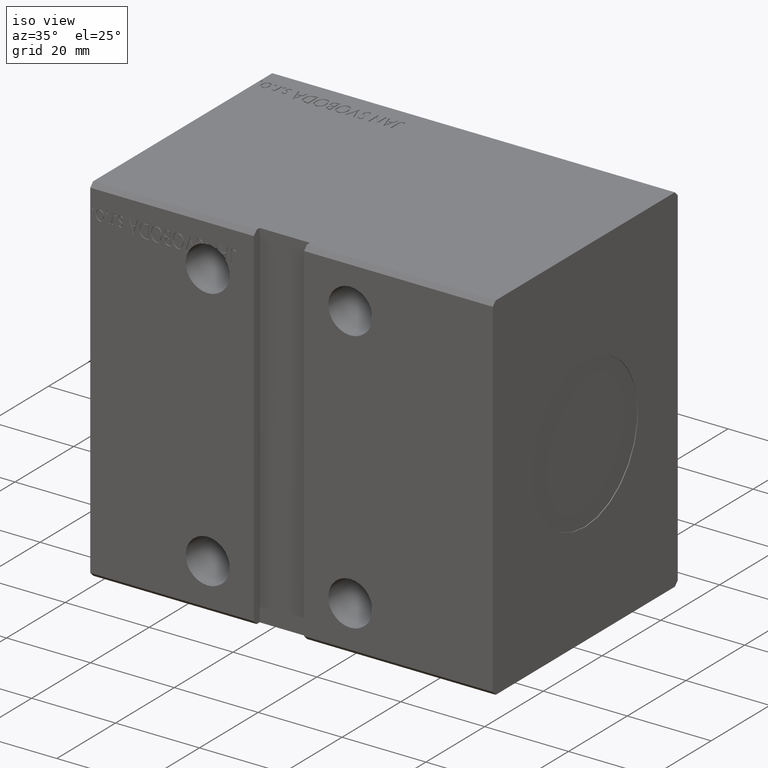
[diagram: clean part render]
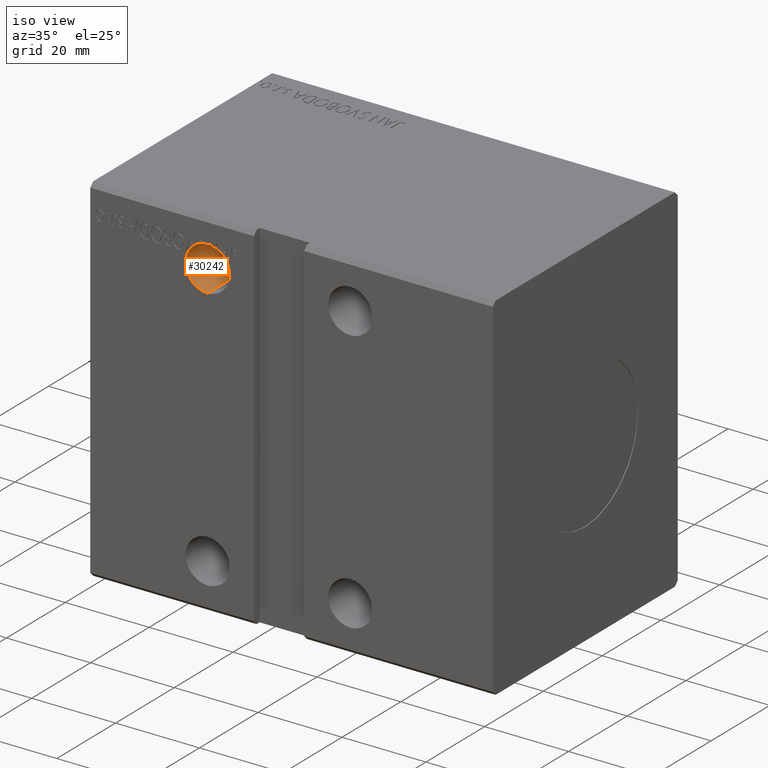
[diagram: same view with one face highlighted and labeled with its STEP entity id]
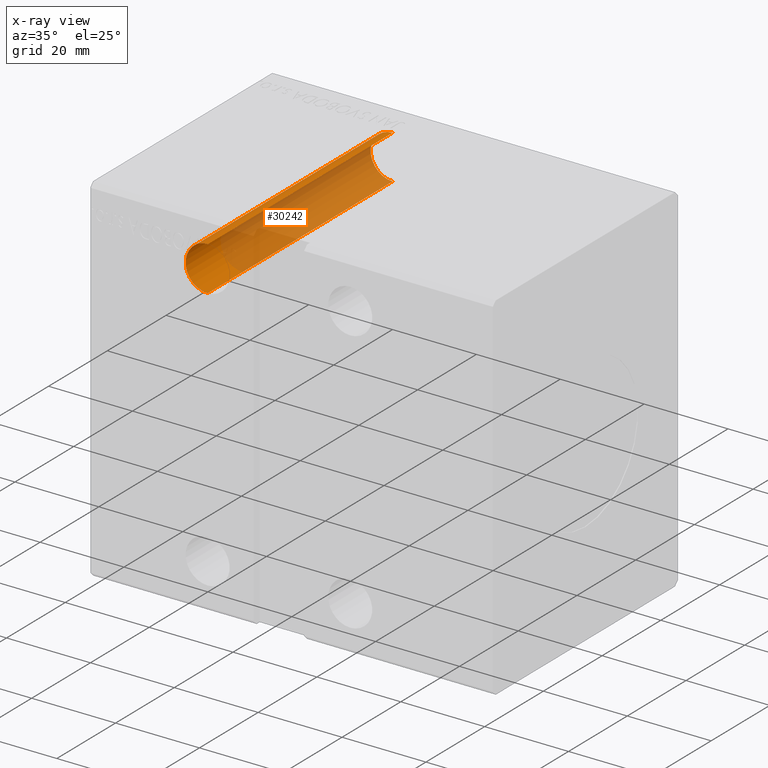
[diagram: x-ray of the same camera — body ghosted, the highlighted face saturated]
A machine part, iso view. The second image highlights one B-rep face of the part: STEP entity #30242.
The next image is the same camera in x-ray: the body ghosted, the highlighted face saturated — about 71% of this face is hidden behind the body in this view.
In plain terms, the highlighted cylindrical surface (edge-blend (fillet) strip) has radius 5.25 mm, axis along (-0, -1, -0).
Its self-contained STEP definition (entity closure, byte-faithful):
#52 = CARTESIAN_POINT ( 'NONE',  ( 27.99999999999999645, 31.50000000000002842, 26.25000000000000355 ) ) ;
#2055 = ORIENTED_EDGE ( 'NONE', *, *, #24756, .T. ) ;
#2320 = AXIS2_PLACEMENT_3D ( 'NONE', #32311, #7633, #10250 ) ;
#2564 = EDGE_CURVE ( 'NONE', #21529, #35610, #11253, .T. ) ;
#2598 = VERTEX_POINT ( 'NONE', #18855 ) ;
#2698 = CYLINDRICAL_SURFACE ( 'NONE', #19540, 5.249999999999997335 ) ;
#2852 = DIRECTION ( 'NONE',  ( 0.000000000000000000, 0.000000000000000000, 1.000000000000000000 ) ) ;
#3060 = CARTESIAN_POINT ( 'NONE',  ( 27.99999999999999645, -31.50000000000000000, 31.49999999999999289 ) ) ;
#3504 = VECTOR ( 'NONE', #35911, 1000.000000000000000 ) ;
#3706 = DIRECTION ( 'NONE',  ( -0.000000000000000000, -1.000000000000000000, -5.507058653894625853E-17 ) ) ;
#3853 = EDGE_CURVE ( 'NONE', #14069, #21529, #21910, .T. ) ;
#3875 = DIRECTION ( 'NONE',  ( -0.000000000000000000, -1.000000000000000000, -5.507058653894625853E-17 ) ) ;
#3886 = EDGE_CURVE ( 'NONE', #6947, #36248, #6730, .T. ) ;
#3889 = DIRECTION ( 'NONE',  ( -0.000000000000000000, 1.000000000000000000, 0.000000000000000000 ) ) ;
#3949 = CARTESIAN_POINT ( 'NONE',  ( 27.99999999999999645, -31.30000000000002203, 31.50000000000000000 ) ) ;
#4170 = VERTEX_POINT ( 'NONE', #13377 ) ;
#4336 = CARTESIAN_POINT ( 'NONE',  ( 27.99999999999999645, 31.50000000000002842, 31.50000000000000000 ) ) ;
#5349 = ORIENTED_EDGE ( 'NONE', *, *, #3853, .F. ) ;
#5570 = CARTESIAN_POINT ( 'NONE',  ( 27.99999999999999645, -31.30000000000544702, 31.50000000000000000 ) ) ;
#6685 = VERTEX_POINT ( 'NONE', #11453 ) ;
#6730 = LINE ( 'NONE', #9755, #21608 ) ;
#6947 = VERTEX_POINT ( 'NONE', #28024 ) ;
#7633 = DIRECTION ( 'NONE',  ( -0.000000000000000000, 1.000000000000000000, 0.000000000000000000 ) ) ;
#7946 = AXIS2_PLACEMENT_3D ( 'NONE', #3949, #16284, #21553 ) ;
#7956 = CARTESIAN_POINT ( 'NONE',  ( 24.56673180715703353, -31.30000000000002203, 35.47179676167006335 ) ) ;
#8158 = CARTESIAN_POINT ( 'NONE',  ( 25.51590622482807191, -31.30000000000002203, 36.12512465952564611 ) ) ;
#9187 = EDGE_CURVE ( 'NONE', #28966, #2598, #15721, .T. ) ;
#9755 = CARTESIAN_POINT ( 'NONE',  ( 25.77627583546970769, -31.30000000000002203, 36.25579129484084007 ) ) ;
#10250 = DIRECTION ( 'NONE',  ( 0.000000000000000000, 0.000000000000000000, 1.000000000000000000 ) ) ;
#10319 = CARTESIAN_POINT ( 'NONE',  ( 27.99999999999999645, -31.50000000000000000, 36.74999999999999289 ) ) ;
#10633 = ORIENTED_EDGE ( 'NONE', *, *, #32724, .F. ) ;
#11253 = CIRCLE ( 'NONE', #16422, 5.249999999999997335 ) ;
#11453 = CARTESIAN_POINT ( 'NONE',  ( 27.99999999999999645, 31.50000000000002842, 36.75000000000000000 ) ) ;
#11729 = EDGE_CURVE ( 'NONE', #4170, #35610, #31596, .T. ) ;
#12117 = VERTEX_POINT ( 'NONE', #7956 ) ;
#12408 = ORIENTED_EDGE ( 'NONE', *, *, #11729, .T. ) ;
#12434 = CARTESIAN_POINT ( 'NONE',  ( 25.77627583546969703, -31.30000000000105587, 36.25579129484084717 ) ) ;
#13213 = ORIENTED_EDGE ( 'NONE', *, *, #2564, .F. ) ;
#13377 = CARTESIAN_POINT ( 'NONE',  ( 24.34017197029173829, -31.30000000000002203, 35.26406147571499616 ) ) ;
#13460 = EDGE_CURVE ( 'NONE', #24167, #2598, #19777, .T. ) ;
#13843 = DIRECTION ( 'NONE',  ( -0.000000000000000000, -1.000000000000000000, -0.000000000000000000 ) ) ;
#14069 = VERTEX_POINT ( 'NONE', #25953 ) ;
#14324 = EDGE_LOOP ( 'NONE', ( #33386, #19748, #21632, #23240, #2055, #19392, #17097, #25207, #10633, #12408, #13213, #5349 ) ) ;
#14570 = VECTOR ( 'NONE', #3875, 1000.000000000000000 ) ;
#14572 = VECTOR ( 'NONE', #27458, 1000.000000000000000 ) ;
#14902 = CARTESIAN_POINT ( 'NONE',  ( 27.99999999999999645, 31.50000000000002842, 36.75000000000000000 ) ) ;
#15721 = LINE ( 'NONE', #36978, #33920 ) ;
#16284 = DIRECTION ( 'NONE',  ( 0.000000000000000000, 1.000000000000000000, 0.000000000000000000 ) ) ;
#16422 = AXIS2_PLACEMENT_3D ( 'NONE', #39911, #3889, #27588 ) ;
#17097 = ORIENTED_EDGE ( 'NONE', *, *, #13460, .F. ) ;
#18276 = DIRECTION ( 'NONE',  ( 0.000000000000000000, 0.000000000000000000, -1.000000000000000000 ) ) ;
#18643 = EDGE_CURVE ( 'NONE', #6685, #31485, #34670, .T. ) ;
#18855 = CARTESIAN_POINT ( 'NONE',  ( 25.51590622482808612, -31.50000000000000000, 36.12512465952563190 ) ) ;
#19305 = CARTESIAN_POINT ( 'NONE',  ( 24.34017197029173829, -31.50000000000000000, 35.26406147571498906 ) ) ;
#19392 = ORIENTED_EDGE ( 'NONE', *, *, #9187, .T. ) ;
#19507 = DIRECTION ( 'NONE',  ( 0.000000000000000000, -1.000000000000000000, -5.507058653894625853E-17 ) ) ;
#19540 = AXIS2_PLACEMENT_3D ( 'NONE', #24547, #27393, #18276 ) ;
#19748 = ORIENTED_EDGE ( 'NONE', *, *, #18643, .T. ) ;
#19777 = CIRCLE ( 'NONE', #2320, 5.249999999999997335 ) ;
#20922 = EDGE_CURVE ( 'NONE', #6685, #14069, #24971, .T. ) ;
#21346 = CIRCLE ( 'NONE', #38799, 5.249999999999997335 ) ;
#21529 = VERTEX_POINT ( 'NONE', #40049 ) ;
#21553 = DIRECTION ( 'NONE',  ( 0.000000000000000000, 0.000000000000000000, 1.000000000000000000 ) ) ;
#21608 = VECTOR ( 'NONE', #31622, 1000.000000000000000 ) ;
#21632 = ORIENTED_EDGE ( 'NONE', *, *, #30482, .F. ) ;
#21910 = LINE ( 'NONE', #52, #28737 ) ;
#23240 = ORIENTED_EDGE ( 'NONE', *, *, #3886, .T. ) ;
#24092 = CIRCLE ( 'NONE', #7946, 5.249999999999997335 ) ;
#24161 = CARTESIAN_POINT ( 'NONE',  ( 24.56673180715703353, 31.50000000000002842, 35.47179676167006335 ) ) ;
#24167 = VERTEX_POINT ( 'NONE', #37819 ) ;
#24547 = CARTESIAN_POINT ( 'NONE',  ( 27.99999999999999645, 31.50000000000002842, 31.50000000000000000 ) ) ;
#24699 = AXIS2_PLACEMENT_3D ( 'NONE', #3060, #36651, #2852 ) ;
#24756 = EDGE_CURVE ( 'NONE', #36248, #28966, #21346, .T. ) ;
#24971 = CIRCLE ( 'NONE', #30143, 5.249999999999997335 ) ;
#25207 = ORIENTED_EDGE ( 'NONE', *, *, #37047, .T. ) ;
#25953 = CARTESIAN_POINT ( 'NONE',  ( 27.99999999999999645, 31.50000000000002842, 26.25000000000000355 ) ) ;
#27221 = DIRECTION ( 'NONE',  ( 0.000000000000000000, -9.344377123928406267E-13, -1.000000000000000000 ) ) ;
#27393 = DIRECTION ( 'NONE',  ( -0.000000000000000000, -1.000000000000000000, -5.507058653894625853E-17 ) ) ;
#27458 = DIRECTION ( 'NONE',  ( -0.000000000000000000, -1.000000000000000000, -5.507058653894625853E-17 ) ) ;
#27588 = DIRECTION ( 'NONE',  ( 0.000000000000000000, 0.000000000000000000, 1.000000000000000000 ) ) ;
#28024 = CARTESIAN_POINT ( 'NONE',  ( 25.77627583546970769, -31.50000000000002132, 36.25579129484084007 ) ) ;
#28619 = DIRECTION ( 'NONE',  ( 0.000000000000000000, 0.000000000000000000, -1.000000000000000000 ) ) ;
#28737 = VECTOR ( 'NONE', #3706, 1000.000000000000000 ) ;
#28774 = CARTESIAN_POINT ( 'NONE',  ( 24.34017197029173829, 31.50000000000002842, 35.26406147571499616 ) ) ;
#28966 = VERTEX_POINT ( 'NONE', #8158 ) ;
#29256 = CIRCLE ( 'NONE', #24699, 5.249999999999997335 ) ;
#30143 = AXIS2_PLACEMENT_3D ( 'NONE', #4336, #19507, #28619 ) ;
#30242 = ADVANCED_FACE ( 'NONE', ( #30423 ), #2698, .F. ) ;
#30260 = DIRECTION ( 'NONE',  ( 2.440028945803348379E-14, -1.000000000000000000, 9.345934926773151265E-13 ) ) ;
#30423 = FACE_OUTER_BOUND ( 'NONE', #14324, .T. ) ;
#30482 = EDGE_CURVE ( 'NONE', #6947, #31485, #29256, .T. ) ;
#31485 = VERTEX_POINT ( 'NONE', #10319 ) ;
#31596 = LINE ( 'NONE', #28774, #14570 ) ;
#31622 = DIRECTION ( 'NONE',  ( 0.000000000000000000, 1.000000000000000000, 0.000000000000000000 ) ) ;
#32311 = CARTESIAN_POINT ( 'NONE',  ( 27.99999999999999645, -31.50000000000000000, 31.49999999999999289 ) ) ;
#32724 = EDGE_CURVE ( 'NONE', #4170, #12117, #24092, .T. ) ;
#33386 = ORIENTED_EDGE ( 'NONE', *, *, #20922, .F. ) ;
#33920 = VECTOR ( 'NONE', #13843, 1000.000000000000000 ) ;
#34670 = LINE ( 'NONE', #14902, #14572 ) ;
#35610 = VERTEX_POINT ( 'NONE', #19305 ) ;
#35911 = DIRECTION ( 'NONE',  ( 0.000000000000000000, 1.000000000000000000, 5.507058653894625853E-17 ) ) ;
#36248 = VERTEX_POINT ( 'NONE', #12434 ) ;
#36651 = DIRECTION ( 'NONE',  ( -0.000000000000000000, 1.000000000000000000, 0.000000000000000000 ) ) ;
#36978 = CARTESIAN_POINT ( 'NONE',  ( 25.51590622482807191, -31.30000000000002203, 36.12512465952564611 ) ) ;
#37047 = EDGE_CURVE ( 'NONE', #24167, #12117, #38936, .T. ) ;
#37819 = CARTESIAN_POINT ( 'NONE',  ( 24.56673180715703353, -31.50000000000001421, 35.47179676167005624 ) ) ;
#38799 = AXIS2_PLACEMENT_3D ( 'NONE', #5570, #30260, #27221 ) ;
#38936 = LINE ( 'NONE', #24161, #3504 ) ;
#39911 = CARTESIAN_POINT ( 'NONE',  ( 27.99999999999999645, -31.50000000000000000, 31.49999999999999289 ) ) ;
#40049 = CARTESIAN_POINT ( 'NONE',  ( 27.99999999999999645, -31.50000000000000000, 26.25000000000000000 ) ) ;